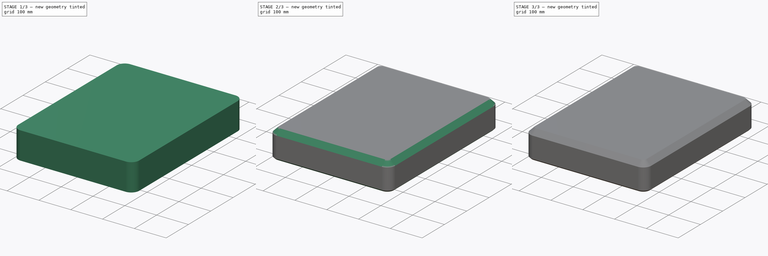
[diagram: build sequence overview — one tinted view per stage of 3, left to right]
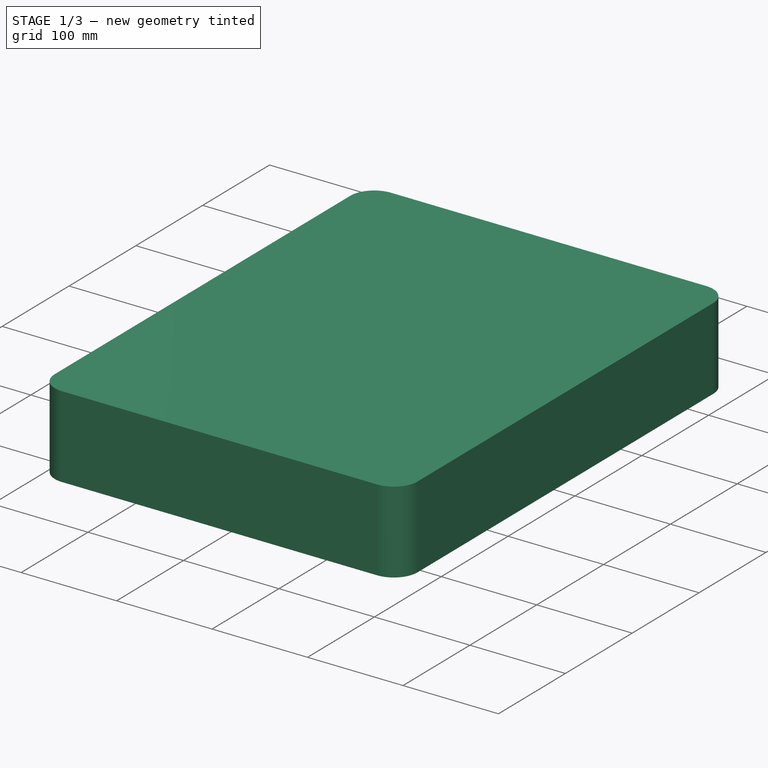
[diagram: stage 1 of 3 — iso view after this stage's code; geometry added in this stage tinted green]
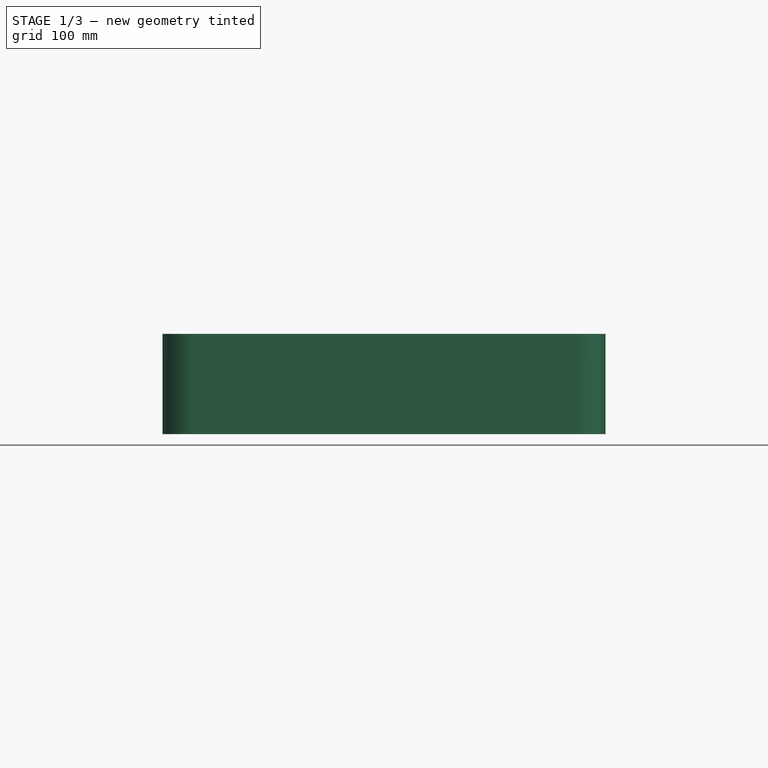
[diagram: stage 1 of 3 — front view after this stage's code; geometry added in this stage tinted green]
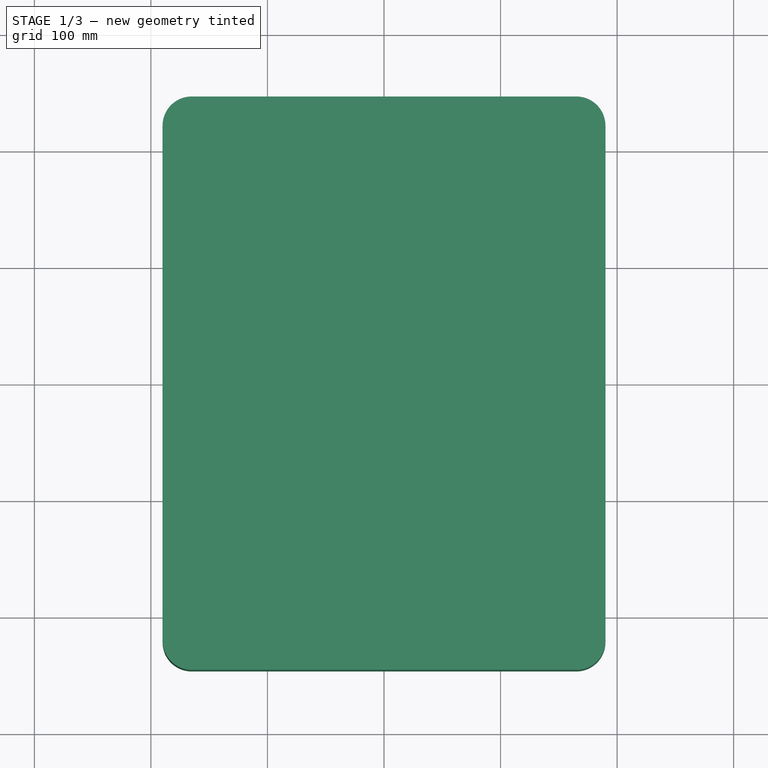
[diagram: stage 1 of 3 — top view after this stage's code; geometry added in this stage tinted green]
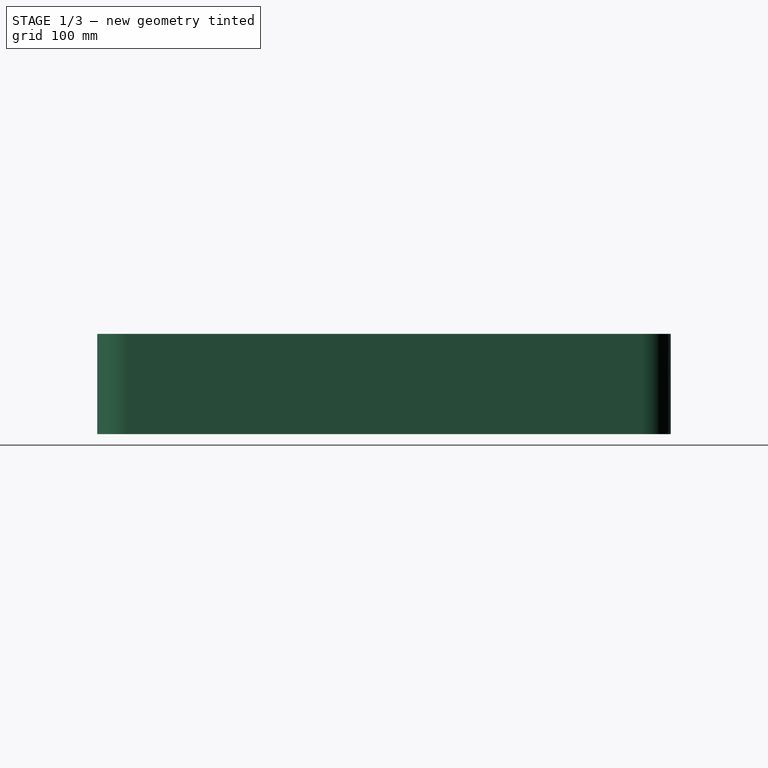
[diagram: stage 1 of 3 — right view after this stage's code; geometry added in this stage tinted green]
FCSTD DOCUMENT  (FreeCAD 0.17RUnknown)
Label: test201_salkkuio
License: All rights reserved
LicenseURL: http://en.wikipedia.org/wiki/All_rights_reserved
objects: Part::Part2DObjectPython×6, Sketcher::SketchObject×4, PartDesign::Chamfer×2, PartDesign::Pocket×2, PartDesign::Pad×1, PartDesign::Fillet×1, PartDesign::Body×1, Part::Feature×1
note: 21 computed .brp shape members not serialized (recipe doc carries the construction recipe); baked Part::Feature solids carry a one-line shape summary decoded from their .brp

FEATURE [Sketcher::SketchObject] Sketch
  MapMode = 5
  Support = -> [XY_Plane]
  sketch-geometry (4):
    g0: LineSegment StartX=-190 StartY=-246 StartZ=0 EndX=190 EndY=-246 EndZ=0
    g1: LineSegment StartX=190 StartY=-246 StartZ=0 EndX=190 EndY=246 EndZ=0
    g2: LineSegment StartX=190 StartY=246 StartZ=0 EndX=-190 EndY=246 EndZ=0
    g3: LineSegment StartX=-190 StartY=246 StartZ=0 EndX=-190 EndY=-246 EndZ=0
  constraints (11):
    c: Coincident(g0,g1)
    c: Coincident(g1,g2)
    c: Coincident(g2,g3)
    c: Coincident(g3,g0)
    c: Horizontal(g0)
    c: Horizontal(g2)
    c: Vertical(g1)
    c: Vertical(g3)
    c: Distance(g2) = 380
    c: Distance(g1) = 492
    c: Symmetric(g2,g0,g-1)
FEATURE [PartDesign::Pad] Pad
  Length = 86
  Length2 = 100
  Profile = -> Sketch
  Type = 0
FEATURE [PartDesign::Fillet] Fillet
  Base = -> Pad [Edge2,Edge1,Edge8,Edge5]
  BaseFeature = -> Pad
  Radius = 25
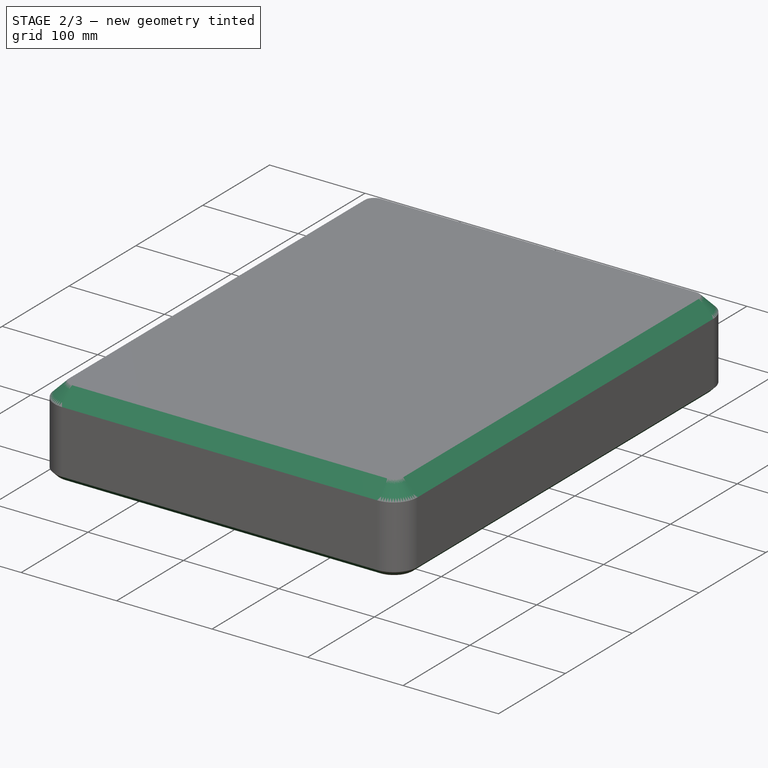
[diagram: stage 2 of 3 — iso view after this stage's code; geometry added in this stage tinted green]
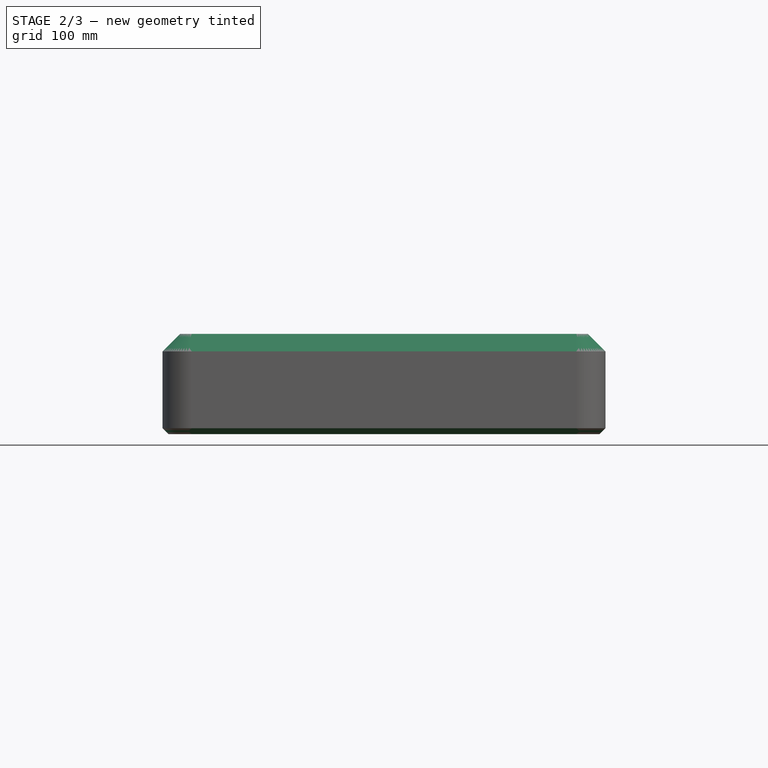
[diagram: stage 2 of 3 — front view after this stage's code; geometry added in this stage tinted green]
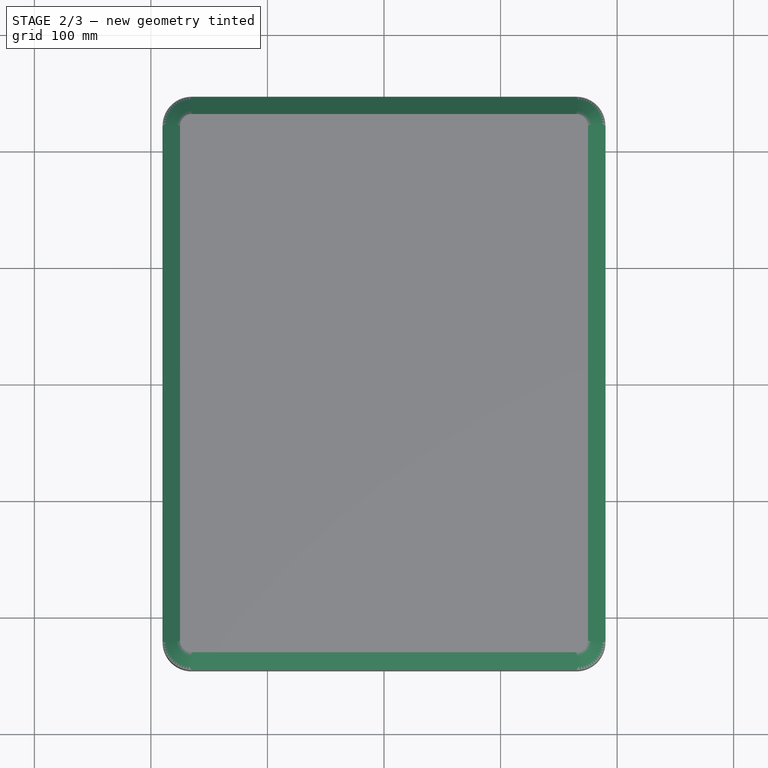
[diagram: stage 2 of 3 — top view after this stage's code; geometry added in this stage tinted green]
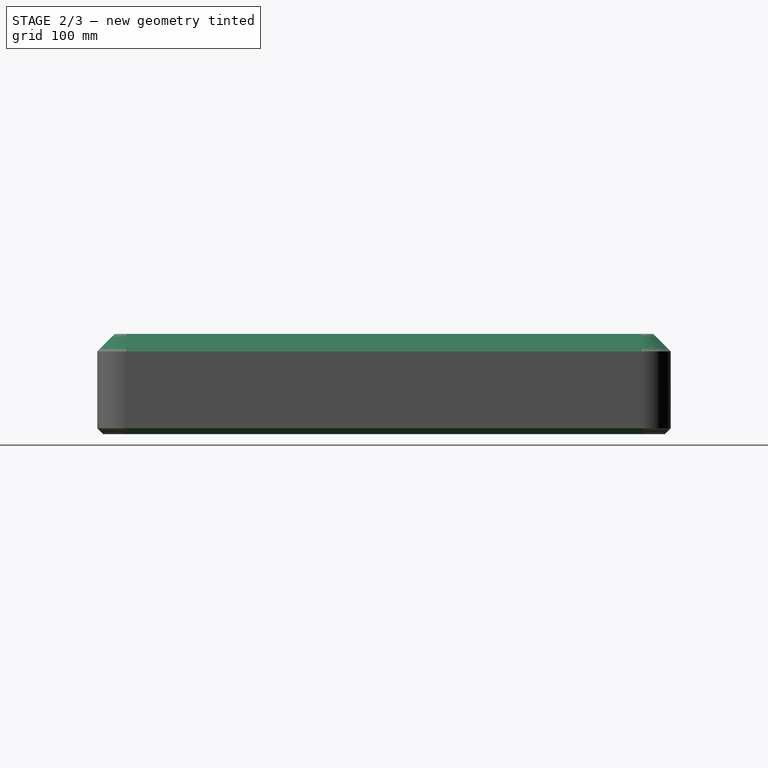
[diagram: stage 2 of 3 — right view after this stage's code; geometry added in this stage tinted green]
FEATURE [PartDesign::Chamfer] Chamfer
  Base = -> Fillet [Edge16]
  BaseFeature = -> Fillet
  Size = 15
FEATURE [PartDesign::Chamfer] Chamfer001
  Base = -> Chamfer [Edge12]
  BaseFeature = -> Chamfer
  Size = 5
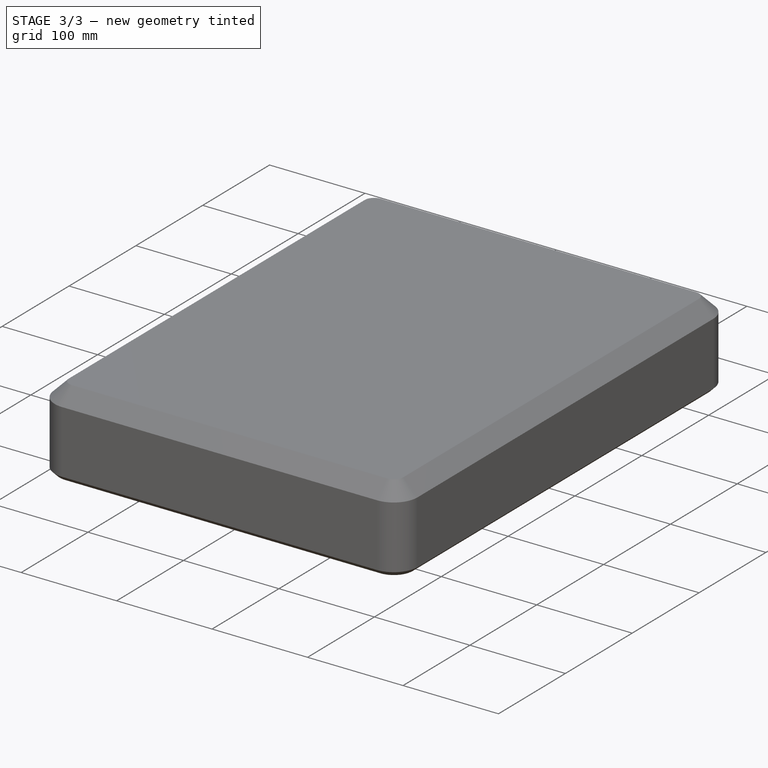
[diagram: stage 3 of 3 — iso view after this stage's code; geometry added in this stage tinted green]
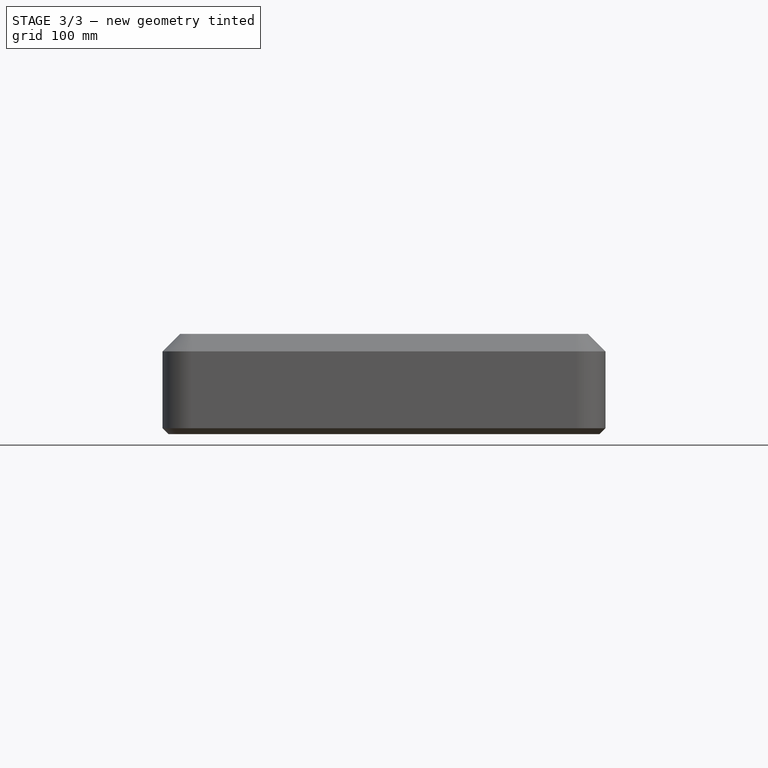
[diagram: stage 3 of 3 — front view after this stage's code; geometry added in this stage tinted green]
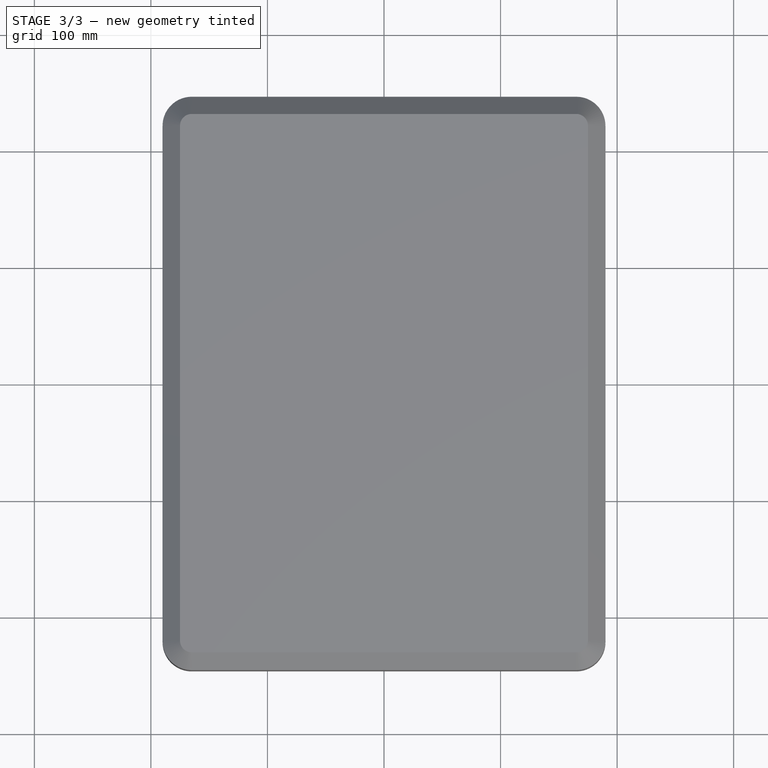
[diagram: stage 3 of 3 — top view after this stage's code; geometry added in this stage tinted green]
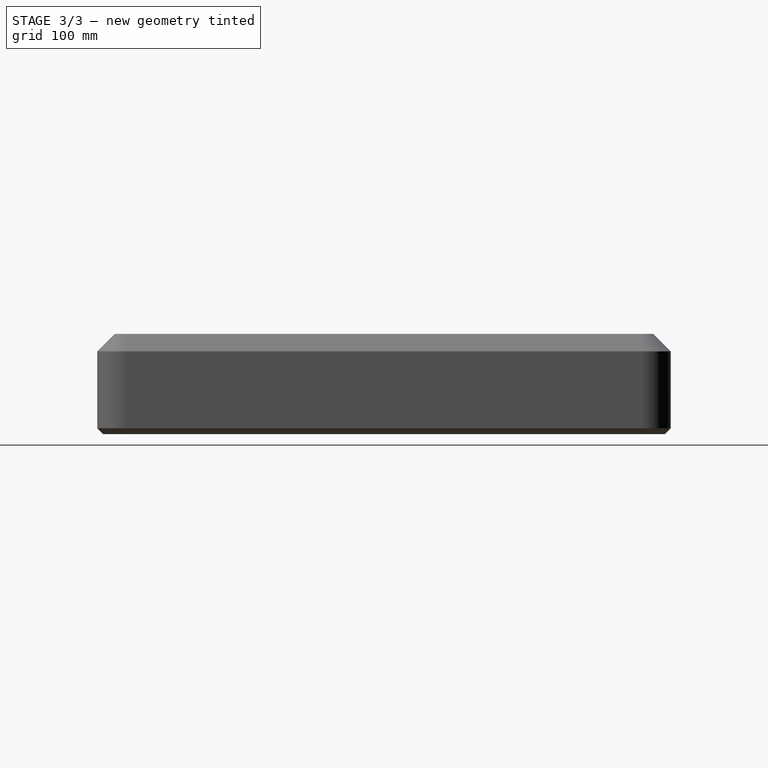
[diagram: stage 3 of 3 — right view after this stage's code; geometry added in this stage tinted green]
FEATURE [Sketcher::SketchObject] Sketch001
  ExternalGeometry = -> [Chamfer001]
  MapMode = 5
  Placement = pos=(-190,0,0) rot=(0.57735,-0.57735,-0.57735;2.0944rad)
  Support = -> [Chamfer001]
  sketch-geometry (24):
    g0: LineSegment [constr] StartX=-76 StartY=5 StartZ=0 EndX=76 EndY=5 EndZ=0
    g1: LineSegment [constr] StartX=76 StartY=5 StartZ=0 EndX=76 EndY=30 EndZ=0
    g2: LineSegment [constr] StartX=76 StartY=30 StartZ=0 EndX=-76 EndY=30 EndZ=0
    g3: LineSegment [constr] StartX=-76 StartY=30 StartZ=0 EndX=-76 EndY=5 EndZ=0
    g4: LineSegment StartX=-187 StartY=54 StartZ=0 EndX=-174 EndY=54 EndZ=0
    g5: LineSegment StartX=-174 StartY=54 StartZ=0 EndX=-174 EndY=48.8 EndZ=0
    g6: LineSegment StartX=-174 StartY=48.8 StartZ=0 EndX=-187 EndY=48.8 EndZ=0
    g7: LineSegment StartX=-187 StartY=48.8 StartZ=0 EndX=-187 EndY=54 EndZ=0
    g8: Circle CenterX=-195 CenterY=51.4 CenterZ=0 NormalX=0 NormalY=0 NormalZ=1 AngleXU=0 Radius=2
    g9: Circle CenterX=-166 CenterY=51.4 CenterZ=0 NormalX=0 NormalY=0 NormalZ=1 AngleXU=0 Radius=2
    g10: LineSegment [constr] StartX=-174 StartY=51.4 StartZ=0 EndX=-187 EndY=51.4 EndZ=0
    g11: LineSegment [constr] StartX=-180.5 StartY=42.9902 StartZ=0 EndX=-180.5 EndY=59.6541 EndZ=0
    g12: LineSegment StartX=-155.8 StartY=44.7 StartZ=0 EndX=-81.8 EndY=44.7 EndZ=0
    g13: LineSegment StartX=-81.8 StartY=44.7 StartZ=0 EndX=-81.8 EndY=59.7 EndZ=0
    g14: LineSegment StartX=-81.8 StartY=59.7 StartZ=0 EndX=-155.8 EndY=59.7 EndZ=0
    g15: LineSegment StartX=-155.8 StartY=59.7 StartZ=0 EndX=-155.8 EndY=44.7 EndZ=0
    g16: LineSegment StartX=-60.2989 StartY=59 StartZ=0 EndX=-28.2989 EndY=59 EndZ=0
    g17: LineSegment StartX=-28.2989 StartY=59 StartZ=0 EndX=-28.2989 EndY=46 EndZ=0
    g18: LineSegment StartX=-28.2989 StartY=46 StartZ=0 EndX=-60.2989 EndY=46 EndZ=0
    g19: LineSegment StartX=-60.2989 StartY=46 StartZ=0 EndX=-60.2989 EndY=59 EndZ=0
    g20: LineSegment [constr] StartX=-17.9252 StartY=59.3092 StartZ=0 EndX=41.2916 EndY=59.3092 EndZ=0
    g21: LineSegment [constr] StartX=41.2916 StartY=59.3092 StartZ=0 EndX=41.2916 EndY=45.5279 EndZ=0
    g22: LineSegment [constr] StartX=41.2916 StartY=45.5279 StartZ=0 EndX=-17.9252 EndY=45.5279 EndZ=0
    g23: LineSegment [constr] StartX=-17.9252 StartY=45.5279 StartZ=0 EndX=-17.9252 EndY=59.3092 EndZ=0
  constraints (66):
    c: Coincident(g0,g1)
    c: Coincident(g1,g2)
    c: Coincident(g2,g3)
    c: Coincident(g3,g0)
    c: Horizontal(g0)
    c: Horizontal(g2)
    c: Vertical(g1)
    c: Vertical(g3)
    c: PointOnObject(g0,g-3)
    c: Distance(g2) = 152
    c: Symmetric(g2,g1,g-2)
    c: Distance(g1) = 25
    c: Coincident(g4,g5)
    c: Coincident(g5,g6)
    c: Coincident(g6,g7)
    c: Coincident(g7,g4)
    c: Horizontal(g4)
    c: Horizontal(g6)
    c: Vertical(g5)
    c: Vertical(g7)
    c: Distance(g4) = 13
    c: Distance(g7) = 5.2
    c: Equal(g9,g8)
    c: PointOnObject(g10,g7)
    c: Horizontal(g10)
    c: PointOnObject(g10,g5)
    c: Symmetric(g6,g4,g10)
    c: PointOnObject(g8,g10)
    c: PointOnObject(g9,g10)
    c: Symmetric(g10,g10,g11)
    c: Symmetric(g8,g9,g11)
    c: Distance(g9,g10) = 8
    c: Radius(g9) = 2
    c: Coincident(g12,g13)
    c: Coincident(g13,g14)
    c: Coincident(g14,g15)
    c: Coincident(g15,g12)
    c: Horizontal(g12)
    c: Horizontal(g14)
    c: Vertical(g13)
    c: Vertical(g15)
    c: Distance(g12) = 74
    c: Distance(g15) = 15
    c: Distance(g4,g-7) = 32
    c: Distance(g4,g-8) = 59
    c: Distance(g10,g15) = 18.2
    c: Distance(g14,g-7) = 26.3
    c: Coincident(g16,g17)
    c: Coincident(g17,g18)
    c: Coincident(g18,g19)
    c: Coincident(g19,g16)
    c: Horizontal(g16)
    c: Horizontal(g18)
    c: Vertical(g17)
    c: Vertical(g19)
    c: Distance(g19) = 13
    c: Distance(g16) = 32
    c: Distance(g16,g-7) = 27
    c: Coincident(g20,g21)
    c: Coincident(g21,g22)
    c: Coincident(g22,g23)
    c: Coincident(g23,g20)
    c: Horizontal(g20)
    c: Horizontal(g22)
    c: Vertical(g21)
    c: Vertical(g23)
FEATURE [PartDesign::Pocket] Pocket
  BaseFeature = -> Chamfer001
  Length = 5
  Length2 = 100
  Profile = -> Sketch001
  Type = 0
FEATURE [Sketcher::SketchObject] Sketch002
  AttachmentOffset = pos=(0,0,0) rot=(0,0,1;1.5708rad)
  ExternalGeometry = -> [Chamfer001,Pocket]
  MapMode = 5
  Placement = pos=(-190,0,0) rot=(0,-1,0;1.5708rad)
  Support = -> [Chamfer001]
  sketch-geometry (7):
    g0: LineSegment StartX=56 StartY=-164.643 StartZ=0 EndX=61.2261 EndY=-181.241 EndZ=0
    g1: LineSegment StartX=56 StartY=-149.457 StartZ=0 EndX=56 EndY=-164.643 EndZ=0
    g2: ArcOfCircle CenterX=50.4 CenterY=-149.457 CenterZ=0 NormalX=0 NormalY=0 NormalZ=1 AngleXU=3.14159 Radius=5.6 StartAngle=3.14159 EndAngle=6.28319
    g3: LineSegment StartX=44.8 StartY=-164.643 StartZ=0 EndX=44.8 EndY=-149.457 EndZ=0
    g4: LineSegment StartX=39.5739 StartY=-181.241 StartZ=0 EndX=44.8 EndY=-164.643 EndZ=0
    g5: ArcOfCircle CenterX=50.4 CenterY=-184.65 CenterZ=0 NormalX=0 NormalY=0 NormalZ=1 AngleXU=3.14159 Radius=11.35 StartAngle=5.97816 EndAngle=9.7298
    g6: LineSegment [constr] StartX=50.4 StartY=-196 StartZ=0 EndX=50.4 EndY=26.8739 EndZ=0
  constraints (22):
    c: Coincident(g0,g1)
    c: Vertical(g1)
    c: Coincident(g3,g4)
    c: Coincident(g4,g5)
    c: Vertical(g6)
    c: Radius(g5) = 11.35
    c: Radius(g2) = 5.6
    c: Vertical(g3)
    c: Equal(g4,g0)
    c: Equal(g3,g1)
    c: Coincident(g5,g0)
    c: Tangent(g5,g4)
    c: Tangent(g5,g0)
    c: Distance(g4) = 17.402
    c: Distance(g3,g2) = 15.186
    c: Symmetric(g2,g2,g2)
    c: Coincident(g1,g2)
    c: Coincident(g3,g2)
    c: Symmetric(g4,g0,g6)
    c: PointOnObject(g6,g5)
    c: Distance(g6,g-3) = 25
    c: Distance(g0,g-4) = 15
FEATURE [PartDesign::Pocket] Pocket001
  BaseFeature = -> Pocket
  Length = 5
  Length2 = 100
  Profile = -> Sketch002
  Type = 0
FEATURE [PartDesign::Body] Body
  Group = -> [Sketch,Pad,Fillet,Chamfer,Chamfer001,Sketch001,Pocket,Sketch002,Pocket001]
  Origin = -> Origin
  Tip = -> Pocket001
FEATURE [Part::Feature] Sketch002001
  shape: bbox 2e-07 x 52.14 x 22.7 mm, 0 faces, 0 solids (baked)
FEATURE [Part::Part2DObjectPython] DWire  # Draft 2D object (typed FeaturePython)
  ChamferSize = 0
  Closed = true
  End = (-190,28.2989,46)
  FilletRadius = 0
  Length = 90
  MakeFace = true
  Points = (4) [(-190,60.2989,46),(-190,60.2989,59),(-190,28.2989,59),(-190,28.2989,46)]
  Start = (-190,60.2989,46)
  Subdivisions = 0
FEATURE [Part::Part2DObjectPython] DWire001  # Draft 2D object (typed FeaturePython)
  ChamferSize = 0
  Closed = true
  End = (-190,81.8,44.7)
  FilletRadius = 0
  Length = 178
  MakeFace = true
  Points = (4) [(-190,81.8,59.7),(-190,155.8,59.7),(-190,155.8,44.7),(-190,81.8,44.7)]
  Start = (-190,81.8,59.7)
  Subdivisions = 0
FEATURE [Part::Part2DObjectPython] Circle  # Draft 2D object (typed FeaturePython)
  FirstAngle = 0
  LastAngle = 0
  MakeFace = true
  Placement = pos=(-190,166,51.4) rot=(0.57735,-0.57735,-0.57735;2.0944rad)
  Radius = 2
FEATURE [Part::Part2DObjectPython] DWire002  # Draft 2D object (typed FeaturePython)
  ChamferSize = 0
  Closed = true
  End = (-190,174,48.8)
  FilletRadius = 0
  Length = 36.4
  MakeFace = true
  Points = (4) [(-190,187,48.8),(-190,187,54),(-190,174,54),(-190,174,48.8)]
  Start = (-190,187,48.8)
  Subdivisions = 0
FEATURE [Part::Part2DObjectPython] Circle001  # Draft 2D object (typed FeaturePython)
  FirstAngle = 0
  LastAngle = 0
  MakeFace = true
  Placement = pos=(-190,195,51.4) rot=(0.57735,-0.57735,-0.57735;2.0944rad)
  Radius = 2
FEATURE [Part::Part2DObjectPython] Block  # Draft 2D object (typed FeaturePython)
  Components = -> [Sketch002001,DWire,DWire001,DWire002,Circle,Circle001]
FEATURE [Sketcher::SketchObject] Sketch002002
  AttachmentOffset = pos=(0,0,0) rot=(0,0,1;1.5708rad)
  ExternalGeometry = -> [Chamfer001]
  MapMode = 5
  Placement = pos=(-190,0,0) rot=(0,-1,0;1.5708rad)
  Support = -> [Chamfer001]
  sketch-geometry (25):
    g0: ArcOfCircle CenterX=50.4 CenterY=-184.65 CenterZ=0 NormalX=0 NormalY=0 NormalZ=1 AngleXU=-3.14159 Radius=11.35 StartAngle=5.97816 EndAngle=9.7298
    g1: LineSegment StartX=56 StartY=-164.643 StartZ=0 EndX=61.2261 EndY=-181.241 EndZ=0
    g2: LineSegment StartX=56 StartY=-149.457 StartZ=0 EndX=56 EndY=-164.643 EndZ=0
    g3: ArcOfCircle CenterX=50.4 CenterY=-149.457 CenterZ=0 NormalX=0 NormalY=0 NormalZ=1 AngleXU=-3.14159 Radius=5.6 StartAngle=3.14159 EndAngle=6.28319
    g4: LineSegment StartX=44.8 StartY=-164.643 StartZ=0 EndX=44.8 EndY=-149.457 EndZ=0
    g5: LineSegment StartX=39.5739 StartY=-181.241 StartZ=0 EndX=44.8 EndY=-164.643 EndZ=0
    g6: LineSegment StartX=46 StartY=58.3 StartZ=0 EndX=59 EndY=58.3 EndZ=0
    g7: LineSegment StartX=59 StartY=58.3 StartZ=0 EndX=59 EndY=26.3 EndZ=0
    g8: LineSegment StartX=59 StartY=26.3 StartZ=0 EndX=46 EndY=26.3 EndZ=0
    g9: LineSegment StartX=46 StartY=26.3 StartZ=0 EndX=46 EndY=58.3 EndZ=0
    g10: LineSegment StartX=59.7 StartY=79.8 StartZ=0 EndX=59.7 EndY=155.8 EndZ=0
    g11: LineSegment StartX=59.7 StartY=155.8 StartZ=0 EndX=44.7 EndY=155.8 EndZ=0
    g12: LineSegment StartX=44.7 StartY=155.8 StartZ=0 EndX=44.7 EndY=79.8 EndZ=0
    g13: LineSegment StartX=44.7 StartY=79.8 StartZ=0 EndX=59.7 EndY=79.8 EndZ=0
    g14: LineSegment StartX=48.8 StartY=187 StartZ=0 EndX=54 EndY=187 EndZ=0
    g15: LineSegment StartX=54 StartY=187 StartZ=0 EndX=54 EndY=174 EndZ=0
    g16: LineSegment StartX=54 StartY=174 StartZ=0 EndX=48.8 EndY=174 EndZ=0
    g17: LineSegment StartX=48.8 StartY=174 StartZ=0 EndX=48.8 EndY=187 EndZ=0
    g18: Circle CenterX=51.4 CenterY=166 CenterZ=0 NormalX=0 NormalY=0 NormalZ=1 AngleXU=-1.5708 Radius=2
    g19: Circle CenterX=51.4 CenterY=195 CenterZ=0 NormalX=0 NormalY=0 NormalZ=1 AngleXU=-1.5708 Radius=2
    g20: LineSegment [constr] StartX=50.4 StartY=-149.453 StartZ=0 EndX=50.4 EndY=-184.651 EndZ=0
    g21: LineSegment StartX=41 StartY=-106.352 StartZ=0 EndX=59.5 EndY=-106.352 EndZ=0
    g22: LineSegment StartX=59.5 StartY=-106.352 StartZ=0 EndX=59.5 EndY=-82.2524 EndZ=0
    g23: LineSegment StartX=59.5 StartY=-82.2524 StartZ=0 EndX=41 EndY=-82.2524 EndZ=0
    g24: LineSegment StartX=41 StartY=-82.2524 StartZ=0 EndX=41 EndY=-106.352 EndZ=0
  constraints (71):
    c: Coincident(g0,g1)
    c: Coincident(g1,g2)
    c: Coincident(g2,g3)
    c: Coincident(g3,g4)
    c: Coincident(g4,g5)
    c: Coincident(g5,g0)
    c: Horizontal(g6)
    c: Coincident(g6,g7)
    c: Vertical(g7)
    c: Coincident(g7,g8)
    c: Horizontal(g8)
    c: Coincident(g8,g9)
    c: Vertical(g9)
    c: Coincident(g9,g6)
    c: Vertical(g10)
    c: Coincident(g10,g11)
    c: Horizontal(g11)
    c: Coincident(g11,g12)
    c: Vertical(g12)
    c: Coincident(g12,g13)
    c: Horizontal(g13)
    c: Coincident(g13,g10)
    c: Horizontal(g14)
    c: Coincident(g14,g15)
    c: Vertical(g15)
    c: Coincident(g15,g16)
    c: Horizontal(g16)
    c: Coincident(g16,g17)
    c: Vertical(g17)
    c: Coincident(g17,g14)
    c: Radius(g19) = 2
    c: Equal(g19,g18)
    c: Radius(g3) = 5.6
    c: Radius(g0) = 11.35
    c: Angle(g3) = 3.14159
    c: Tangent(g0,g5)
    c: Tangent(g0,g1)
    c: Vertical(g4)
    c: Vertical(g2)
    c: Equal(g5,g1)
    c: Distance(g4) = 15.186
    c: Vertical(g20)
    c: Symmetric(g4,g1,g20)
    c: Symmetric(g0,g0,g20)
    c: Distance(g0,g-3) = 36.35
    c: Distance(g0,g-5) = 20.6
    c: Distance(g12) = 76
    c: Distance(g11) = 15
    c: Distance(g10,g-5) = 11.3
    c: Distance(g14,g-5) = 17
    c: Distance(g14) = 5.2
    c: Distance(g15) = 13
    c: Distance(g18,g16) = 8
    c: Distance(g19,g14) = 8
    c: Distance(g14,g-6) = 34
    c: Distance(g10,g-6) = 65.2
    c: Distance(g7) = 32
    c: Distance(g6) = 13
    c: Distance(g6,g13) = 21.5
    c: Distance(g6,g-5) = 12
    c: Coincident(g21,g22)
    c: Coincident(g22,g23)
    c: Coincident(g23,g24)
    c: Coincident(g24,g21)
    c: Horizontal(g21)
    c: Horizontal(g23)
    c: Vertical(g22)
    c: Vertical(g24)
    c: Distance(g24) = 24.1
    c: Distance(g23) = 18.5
    c: Distance(g22,g-5) = 11.5
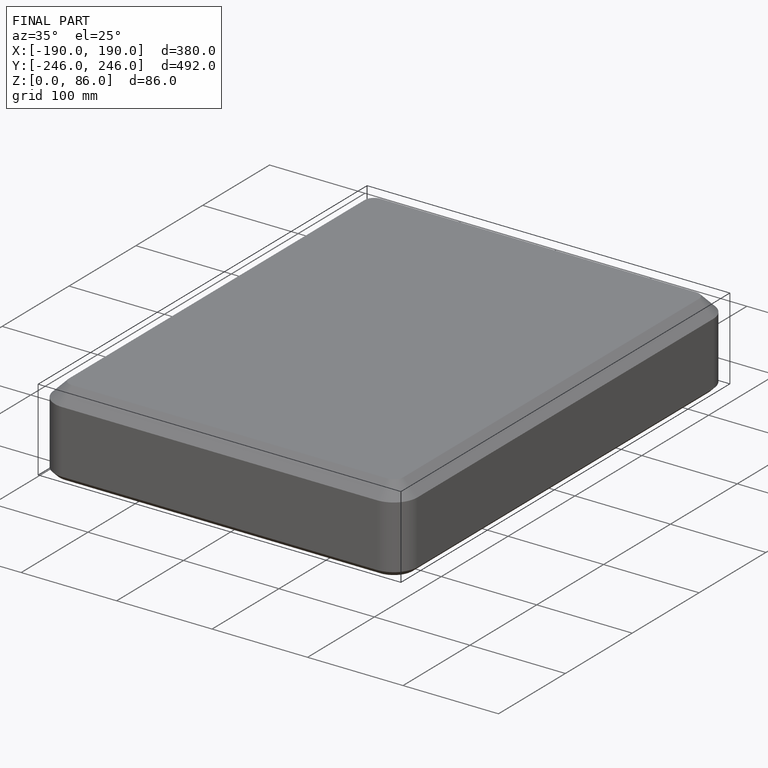
[diagram: finished part — iso view with bounding-box wireframe]
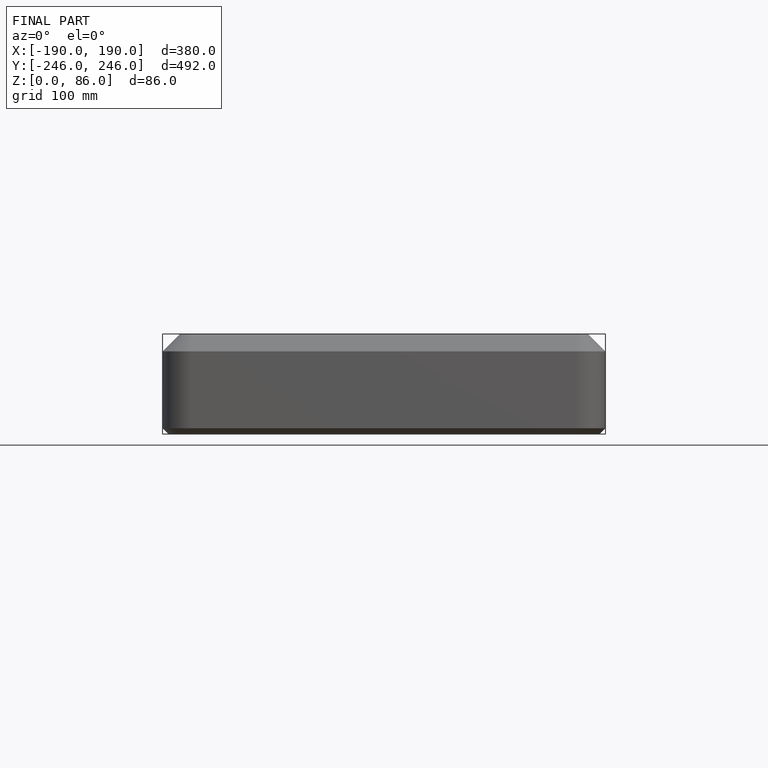
[diagram: finished part — front view with bounding-box wireframe]
